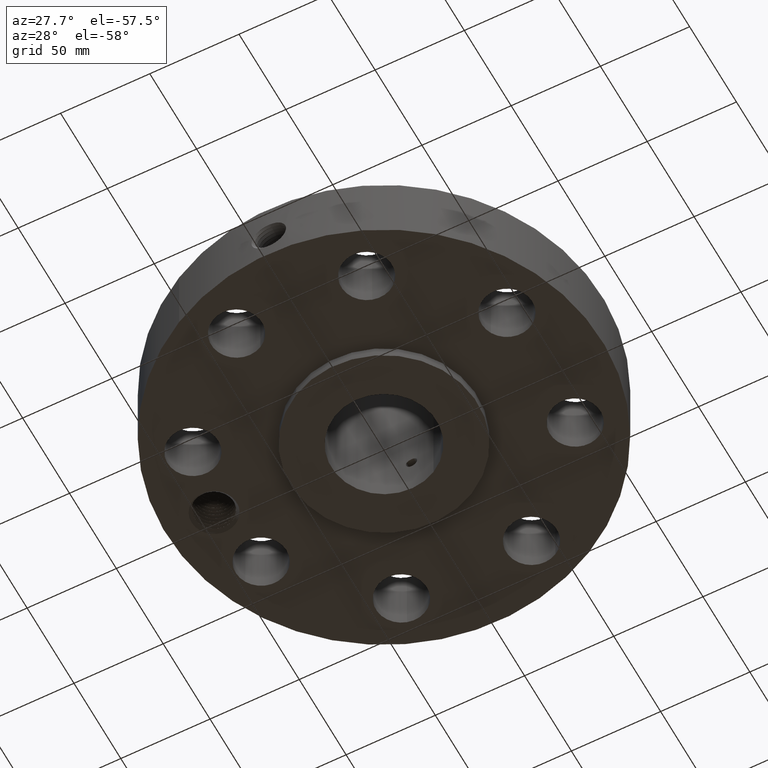
[diagram: clean part render]
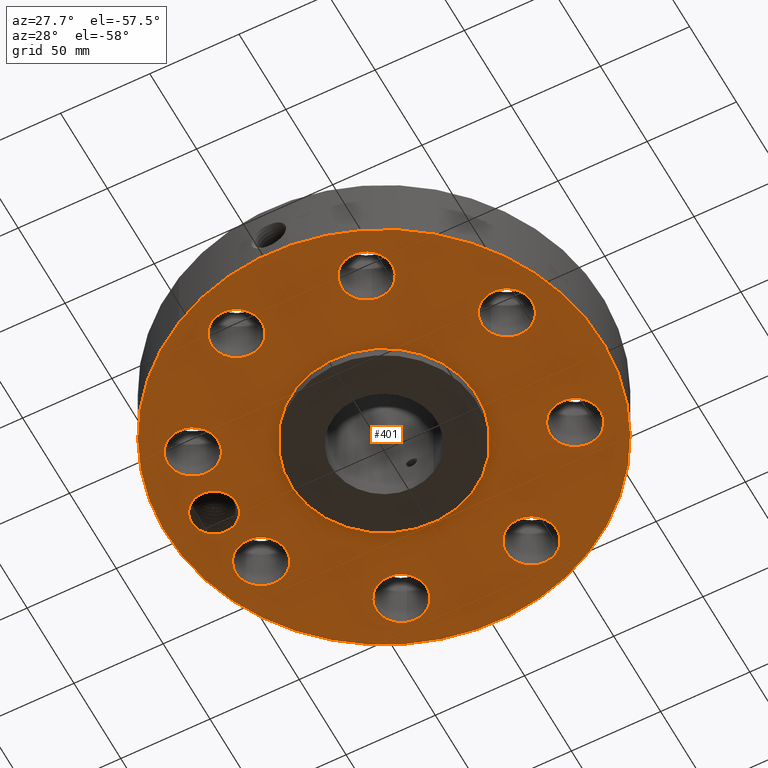
[diagram: same view with one face highlighted and labeled with its STEP entity id]
A machine part, auxiliary view. The second image highlights one B-rep face of the part: STEP entity #401.
In plain terms, the highlighted planar face has unit normal (0, 0, -1).
Its self-contained STEP definition (entity closure, byte-faithful):
#42=AXIS2_PLACEMENT_3D('Circle Axis2P3D',#40,#41,$) ;
#180=AXIS2_PLACEMENT_3D('Plane Axis2P3D',#177,#178,#179) ;
#184=AXIS2_PLACEMENT_3D('Circle Axis2P3D',#182,#183,$) ;
#193=AXIS2_PLACEMENT_3D('Circle Axis2P3D',#191,#192,$) ;
#202=AXIS2_PLACEMENT_3D('Circle Axis2P3D',#200,#201,$) ;
#209=AXIS2_PLACEMENT_3D('Circle Axis2P3D',#207,#208,$) ;
#241=AXIS2_PLACEMENT_3D('Circle Axis2P3D',#239,#240,$) ;
#250=AXIS2_PLACEMENT_3D('Circle Axis2P3D',#248,#249,$) ;
#259=AXIS2_PLACEMENT_3D('Circle Axis2P3D',#257,#258,$) ;
#268=AXIS2_PLACEMENT_3D('Circle Axis2P3D',#266,#267,$) ;
#277=AXIS2_PLACEMENT_3D('Circle Axis2P3D',#275,#276,$) ;
#286=AXIS2_PLACEMENT_3D('Circle Axis2P3D',#284,#285,$) ;
#295=AXIS2_PLACEMENT_3D('Circle Axis2P3D',#293,#294,$) ;
#304=AXIS2_PLACEMENT_3D('Circle Axis2P3D',#302,#303,$) ;
#313=AXIS2_PLACEMENT_3D('Circle Axis2P3D',#311,#312,$) ;
#322=AXIS2_PLACEMENT_3D('Circle Axis2P3D',#320,#321,$) ;
#331=AXIS2_PLACEMENT_3D('Circle Axis2P3D',#329,#330,$) ;
#340=AXIS2_PLACEMENT_3D('Circle Axis2P3D',#338,#339,$) ;
#349=AXIS2_PLACEMENT_3D('Circle Axis2P3D',#347,#348,$) ;
#358=AXIS2_PLACEMENT_3D('Circle Axis2P3D',#356,#357,$) ;
#367=AXIS2_PLACEMENT_3D('Circle Axis2P3D',#365,#366,$) ;
#376=AXIS2_PLACEMENT_3D('Circle Axis2P3D',#374,#375,$) ;
#385=AXIS2_PLACEMENT_3D('Circle Axis2P3D',#383,#384,$) ;
#394=AXIS2_PLACEMENT_3D('Circle Axis2P3D',#392,#393,$) ;
#40=CARTESIAN_POINT('Axis2P3D Location',(0.,0.,0.250000000001)) ;
#44=CARTESIAN_POINT('Vertex',(-2.3060368407,-4.22117212271,0.250000000001)) ;
#46=CARTESIAN_POINT('Vertex',(2.3060368407,4.22117212271,0.250000000001)) ;
#177=CARTESIAN_POINT('Axis2P3D Location',(0.,2.06000000001,0.250000000001)) ;
#182=CARTESIAN_POINT('Axis2P3D Location',(0.,0.,0.250000000001)) ;
#191=CARTESIAN_POINT('Axis2P3D Location',(-3.75000000002,5.59482469102E-016,0.250000000001)) ;
#195=CARTESIAN_POINT('Vertex',(-4.18659732456,0.238514205457,0.250000000001)) ;
#197=CARTESIAN_POINT('Vertex',(-3.28705766368,0.182182993797,0.250000000001)) ;
#200=CARTESIAN_POINT('Axis2P3D Location',(-3.75000000002,5.59482469102E-016,0.250000000001)) ;
#204=CARTESIAN_POINT('Vertex',(-3.31340267547,-0.238514205457,0.250000000001)) ;
#207=CARTESIAN_POINT('Axis2P3D Location',(-3.75000000002,5.59482469102E-016,0.250000000001)) ;
#211=CARTESIAN_POINT('Vertex',(-3.25655334623,0.0633770453075,0.250000000001)) ;
#215=CARTESIAN_POINT('Control Point',(-3.26570801263,0.124344238112,0.250000000001)) ;
#216=CARTESIAN_POINT('Control Point',(-3.26312244244,0.112266107016,0.250000000001)) ;
#217=CARTESIAN_POINT('Control Point',(-3.26091158285,0.100114780052,0.250000000001)) ;
#218=CARTESIAN_POINT('Control Point',(-3.25907852096,0.08790568198,0.250000000001)) ;
#219=CARTESIAN_POINT('Control Point',(-3.25762539156,0.0756544972461,0.250000000001)) ;
#220=CARTESIAN_POINT('Control Point',(-3.25655334623,0.0633770453075,0.250000000001)) ;
#221=CARTESIAN_POINT('Vertex',(-3.26570801268,0.124344238113,0.250000000001)) ;
#225=CARTESIAN_POINT('Control Point',(-3.26570801268,0.124344238113,0.250000000001)) ;
#226=CARTESIAN_POINT('Control Point',(-3.26926136006,0.136175667929,0.250000000001)) ;
#227=CARTESIAN_POINT('Control Point',(-3.27317824331,0.147890063426,0.250000000001)) ;
#228=CARTESIAN_POINT('Control Point',(-3.27745389667,0.159472481022,0.250000000001)) ;
#229=CARTESIAN_POINT('Control Point',(-3.28208258305,0.17090822929,0.250000000001)) ;
#230=CARTESIAN_POINT('Control Point',(-3.28705766368,0.182182993797,0.250000000001)) ;
#239=CARTESIAN_POINT('Axis2P3D Location',(3.46454824693,-1.43506287137,0.250000000001)) ;
#243=CARTESIAN_POINT('Vertex',(3.95599448159,-1.70354117299,0.250000000001)) ;
#245=CARTESIAN_POINT('Vertex',(2.97310201227,-1.16658456976,0.250000000001)) ;
#248=CARTESIAN_POINT('Axis2P3D Location',(3.46454824693,-1.43506287137,0.250000000001)) ;
#257=CARTESIAN_POINT('Axis2P3D Location',(0.,0.,0.250000000001)) ;
#261=CARTESIAN_POINT('Vertex',(0.987616609529,1.8078200775,0.250000000001)) ;
#263=CARTESIAN_POINT('Vertex',(-0.987616609529,-1.8078200775,0.250000000001)) ;
#266=CARTESIAN_POINT('Axis2P3D Location',(0.,0.,0.250000000001)) ;
#275=CARTESIAN_POINT('Axis2P3D Location',(1.43506287137,-3.46454824693,0.250000000001)) ;
#279=CARTESIAN_POINT('Vertex',(1.27740073393,-2.92720045414,0.250000000001)) ;
#281=CARTESIAN_POINT('Vertex',(1.59272500882,-4.00189603972,0.250000000001)) ;
#284=CARTESIAN_POINT('Axis2P3D Location',(1.43506287137,-3.46454824693,0.250000000001)) ;
#293=CARTESIAN_POINT('Axis2P3D Location',(-1.43506287137,-3.46454824693,0.250000000001)) ;
#297=CARTESIAN_POINT('Vertex',(-1.16658456976,-2.97310201227,0.250000000001)) ;
#299=CARTESIAN_POINT('Vertex',(-1.70354117299,-3.95599448159,0.250000000001)) ;
#302=CARTESIAN_POINT('Axis2P3D Location',(-1.43506287137,-3.46454824693,0.250000000001)) ;
#311=CARTESIAN_POINT('Axis2P3D Location',(-3.46454824693,-1.43506287137,0.250000000001)) ;
#315=CARTESIAN_POINT('Vertex',(-2.92720045414,-1.27740073393,0.250000000001)) ;
#317=CARTESIAN_POINT('Vertex',(-4.00189603972,-1.59272500882,0.250000000001)) ;
#320=CARTESIAN_POINT('Axis2P3D Location',(-3.46454824693,-1.43506287137,0.250000000001)) ;
#329=CARTESIAN_POINT('Axis2P3D Location',(-3.46454824693,1.43506287137,0.250000000001)) ;
#333=CARTESIAN_POINT('Vertex',(-2.97310201227,1.16658456976,0.250000000001)) ;
#335=CARTESIAN_POINT('Vertex',(-3.95599448159,1.70354117299,0.250000000001)) ;
#338=CARTESIAN_POINT('Axis2P3D Location',(-3.46454824693,1.43506287137,0.250000000001)) ;
#347=CARTESIAN_POINT('Axis2P3D Location',(-1.43506287137,3.46454824693,0.250000000001)) ;
#351=CARTESIAN_POINT('Vertex',(-1.27740073393,2.92720045414,0.250000000001)) ;
#353=CARTESIAN_POINT('Vertex',(-1.59272500882,4.00189603972,0.250000000001)) ;
#356=CARTESIAN_POINT('Axis2P3D Location',(-1.43506287137,3.46454824693,0.250000000001)) ;
#365=CARTESIAN_POINT('Axis2P3D Location',(1.43506287137,3.46454824693,0.250000000001)) ;
#369=CARTESIAN_POINT('Vertex',(1.16658456976,2.97310201227,0.250000000001)) ;
#371=CARTESIAN_POINT('Vertex',(1.70354117299,3.95599448159,0.250000000001)) ;
#374=CARTESIAN_POINT('Axis2P3D Location',(1.43506287137,3.46454824693,0.250000000001)) ;
#383=CARTESIAN_POINT('Axis2P3D Location',(3.46454824693,1.43506287137,0.250000000001)) ;
#387=CARTESIAN_POINT('Vertex',(2.92720045414,1.27740073393,0.250000000001)) ;
#389=CARTESIAN_POINT('Vertex',(4.00189603972,1.59272500882,0.250000000001)) ;
#392=CARTESIAN_POINT('Axis2P3D Location',(3.46454824693,1.43506287137,0.250000000001)) ;
#41=DIRECTION('Axis2P3D Direction',(0.,0.,-0.0393700787402)) ;
#178=DIRECTION('Axis2P3D Direction',(0.,0.,-0.0393700787402)) ;
#179=DIRECTION('Axis2P3D XDirection',(0.0393700787402,0.,0.)) ;
#183=DIRECTION('Axis2P3D Direction',(0.,0.,-0.0393700787402)) ;
#192=DIRECTION('Axis2P3D Direction',(0.,0.,-0.0393700787402)) ;
#201=DIRECTION('Axis2P3D Direction',(0.,0.,-0.0393700787402)) ;
#208=DIRECTION('Axis2P3D Direction',(0.,0.,-0.0393700787402)) ;
#240=DIRECTION('Axis2P3D Direction',(0.,0.,-0.0393700787402)) ;
#249=DIRECTION('Axis2P3D Direction',(0.,0.,-0.0393700787402)) ;
#258=DIRECTION('Axis2P3D Direction',(0.,0.,-0.0393700787402)) ;
#267=DIRECTION('Axis2P3D Direction',(0.,0.,-0.0393700787402)) ;
#276=DIRECTION('Axis2P3D Direction',(0.,0.,-0.0393700787402)) ;
#285=DIRECTION('Axis2P3D Direction',(0.,0.,-0.0393700787402)) ;
#294=DIRECTION('Axis2P3D Direction',(0.,0.,-0.0393700787402)) ;
#303=DIRECTION('Axis2P3D Direction',(0.,0.,-0.0393700787402)) ;
#312=DIRECTION('Axis2P3D Direction',(0.,0.,-0.0393700787402)) ;
#321=DIRECTION('Axis2P3D Direction',(0.,0.,-0.0393700787402)) ;
#330=DIRECTION('Axis2P3D Direction',(0.,0.,-0.0393700787402)) ;
#339=DIRECTION('Axis2P3D Direction',(0.,0.,-0.0393700787402)) ;
#348=DIRECTION('Axis2P3D Direction',(0.,0.,-0.0393700787402)) ;
#357=DIRECTION('Axis2P3D Direction',(0.,0.,-0.0393700787402)) ;
#366=DIRECTION('Axis2P3D Direction',(0.,0.,-0.0393700787402)) ;
#375=DIRECTION('Axis2P3D Direction',(0.,0.,-0.0393700787402)) ;
#384=DIRECTION('Axis2P3D Direction',(0.,0.,-0.0393700787402)) ;
#393=DIRECTION('Axis2P3D Direction',(0.,0.,-0.0393700787402)) ;
#188=ORIENTED_EDGE('',*,*,#48,.T.) ;
#189=ORIENTED_EDGE('',*,*,#186,.T.) ;
#233=ORIENTED_EDGE('',*,*,#199,.F.) ;
#234=ORIENTED_EDGE('',*,*,#206,.F.) ;
#235=ORIENTED_EDGE('',*,*,#213,.F.) ;
#236=ORIENTED_EDGE('',*,*,#223,.F.) ;
#237=ORIENTED_EDGE('',*,*,#231,.T.) ;
#254=ORIENTED_EDGE('',*,*,#247,.F.) ;
#255=ORIENTED_EDGE('',*,*,#252,.F.) ;
#272=ORIENTED_EDGE('',*,*,#265,.F.) ;
#273=ORIENTED_EDGE('',*,*,#270,.F.) ;
#290=ORIENTED_EDGE('',*,*,#283,.F.) ;
#291=ORIENTED_EDGE('',*,*,#288,.F.) ;
#308=ORIENTED_EDGE('',*,*,#301,.F.) ;
#309=ORIENTED_EDGE('',*,*,#306,.F.) ;
#326=ORIENTED_EDGE('',*,*,#319,.F.) ;
#327=ORIENTED_EDGE('',*,*,#324,.F.) ;
#344=ORIENTED_EDGE('',*,*,#337,.F.) ;
#345=ORIENTED_EDGE('',*,*,#342,.F.) ;
#362=ORIENTED_EDGE('',*,*,#355,.F.) ;
#363=ORIENTED_EDGE('',*,*,#360,.F.) ;
#380=ORIENTED_EDGE('',*,*,#373,.F.) ;
#381=ORIENTED_EDGE('',*,*,#378,.F.) ;
#398=ORIENTED_EDGE('',*,*,#391,.F.) ;
#399=ORIENTED_EDGE('',*,*,#396,.F.) ;
#238=FACE_BOUND('',#232,.T.) ;
#256=FACE_BOUND('',#253,.T.) ;
#274=FACE_BOUND('',#271,.T.) ;
#292=FACE_BOUND('',#289,.T.) ;
#310=FACE_BOUND('',#307,.T.) ;
#328=FACE_BOUND('',#325,.T.) ;
#346=FACE_BOUND('',#343,.T.) ;
#364=FACE_BOUND('',#361,.T.) ;
#382=FACE_BOUND('',#379,.T.) ;
#400=FACE_BOUND('',#397,.T.) ;
#401=ADVANCED_FACE('PartBody',(#190,#238,#256,#274,#292,#310,#328,#346,#364,#382,#400),#181,.T.) ;
#214=B_SPLINE_CURVE_WITH_KNOTS('',5,(#215,#216,#217,#218,#219,#220),.UNSPECIFIED.,.F.,.U.,(6,6),(0.,2.15203485286),.UNSPECIFIED.) ;
#224=B_SPLINE_CURVE_WITH_KNOTS('',5,(#225,#226,#227,#228,#229,#230),.UNSPECIFIED.,.F.,.U.,(6,6),(0.,2.1523353228),.UNSPECIFIED.) ;
#43=CIRCLE('generated circle',#42,4.81000000002) ;
#185=CIRCLE('generated circle',#184,4.81000000002) ;
#194=CIRCLE('generated circle',#193,0.497500000002) ;
#203=CIRCLE('generated circle',#202,0.497500000002) ;
#210=CIRCLE('generated circle',#209,0.497500000002) ;
#242=CIRCLE('generated circle',#241,0.560000000002) ;
#251=CIRCLE('generated circle',#250,0.560000000002) ;
#260=CIRCLE('generated circle',#259,2.06000000001) ;
#269=CIRCLE('generated circle',#268,2.06000000001) ;
#278=CIRCLE('generated circle',#277,0.560000000002) ;
#287=CIRCLE('generated circle',#286,0.560000000002) ;
#296=CIRCLE('generated circle',#295,0.560000000002) ;
#305=CIRCLE('generated circle',#304,0.560000000002) ;
#314=CIRCLE('generated circle',#313,0.560000000002) ;
#323=CIRCLE('generated circle',#322,0.560000000002) ;
#332=CIRCLE('generated circle',#331,0.560000000002) ;
#341=CIRCLE('generated circle',#340,0.560000000002) ;
#350=CIRCLE('generated circle',#349,0.560000000002) ;
#359=CIRCLE('generated circle',#358,0.560000000002) ;
#368=CIRCLE('generated circle',#367,0.560000000002) ;
#377=CIRCLE('generated circle',#376,0.560000000002) ;
#386=CIRCLE('generated circle',#385,0.560000000002) ;
#395=CIRCLE('generated circle',#394,0.560000000002) ;
#48=EDGE_CURVE('',#45,#47,#43,.T.) ;
#186=EDGE_CURVE('',#47,#45,#185,.T.) ;
#199=EDGE_CURVE('',#196,#198,#194,.T.) ;
#206=EDGE_CURVE('',#205,#196,#203,.T.) ;
#213=EDGE_CURVE('',#212,#205,#210,.T.) ;
#223=EDGE_CURVE('',#222,#212,#214,.T.) ;
#231=EDGE_CURVE('',#222,#198,#224,.T.) ;
#247=EDGE_CURVE('',#244,#246,#242,.T.) ;
#252=EDGE_CURVE('',#246,#244,#251,.T.) ;
#265=EDGE_CURVE('',#262,#264,#260,.T.) ;
#270=EDGE_CURVE('',#264,#262,#269,.T.) ;
#283=EDGE_CURVE('',#280,#282,#278,.T.) ;
#288=EDGE_CURVE('',#282,#280,#287,.T.) ;
#301=EDGE_CURVE('',#298,#300,#296,.T.) ;
#306=EDGE_CURVE('',#300,#298,#305,.T.) ;
#319=EDGE_CURVE('',#316,#318,#314,.T.) ;
#324=EDGE_CURVE('',#318,#316,#323,.T.) ;
#337=EDGE_CURVE('',#334,#336,#332,.T.) ;
#342=EDGE_CURVE('',#336,#334,#341,.T.) ;
#355=EDGE_CURVE('',#352,#354,#350,.T.) ;
#360=EDGE_CURVE('',#354,#352,#359,.T.) ;
#373=EDGE_CURVE('',#370,#372,#368,.T.) ;
#378=EDGE_CURVE('',#372,#370,#377,.T.) ;
#391=EDGE_CURVE('',#388,#390,#386,.T.) ;
#396=EDGE_CURVE('',#390,#388,#395,.T.) ;
#187=EDGE_LOOP('',(#188,#189)) ;
#232=EDGE_LOOP('',(#233,#234,#235,#236,#237)) ;
#253=EDGE_LOOP('',(#254,#255)) ;
#271=EDGE_LOOP('',(#272,#273)) ;
#289=EDGE_LOOP('',(#290,#291)) ;
#307=EDGE_LOOP('',(#308,#309)) ;
#325=EDGE_LOOP('',(#326,#327)) ;
#343=EDGE_LOOP('',(#344,#345)) ;
#361=EDGE_LOOP('',(#362,#363)) ;
#379=EDGE_LOOP('',(#380,#381)) ;
#397=EDGE_LOOP('',(#398,#399)) ;
#190=FACE_OUTER_BOUND('',#187,.T.) ;
#181=PLANE('',#180) ;
#45=VERTEX_POINT('',#44) ;
#47=VERTEX_POINT('',#46) ;
#196=VERTEX_POINT('',#195) ;
#198=VERTEX_POINT('',#197) ;
#205=VERTEX_POINT('',#204) ;
#212=VERTEX_POINT('',#211) ;
#222=VERTEX_POINT('',#221) ;
#244=VERTEX_POINT('',#243) ;
#246=VERTEX_POINT('',#245) ;
#262=VERTEX_POINT('',#261) ;
#264=VERTEX_POINT('',#263) ;
#280=VERTEX_POINT('',#279) ;
#282=VERTEX_POINT('',#281) ;
#298=VERTEX_POINT('',#297) ;
#300=VERTEX_POINT('',#299) ;
#316=VERTEX_POINT('',#315) ;
#318=VERTEX_POINT('',#317) ;
#334=VERTEX_POINT('',#333) ;
#336=VERTEX_POINT('',#335) ;
#352=VERTEX_POINT('',#351) ;
#354=VERTEX_POINT('',#353) ;
#370=VERTEX_POINT('',#369) ;
#372=VERTEX_POINT('',#371) ;
#388=VERTEX_POINT('',#387) ;
#390=VERTEX_POINT('',#389) ;